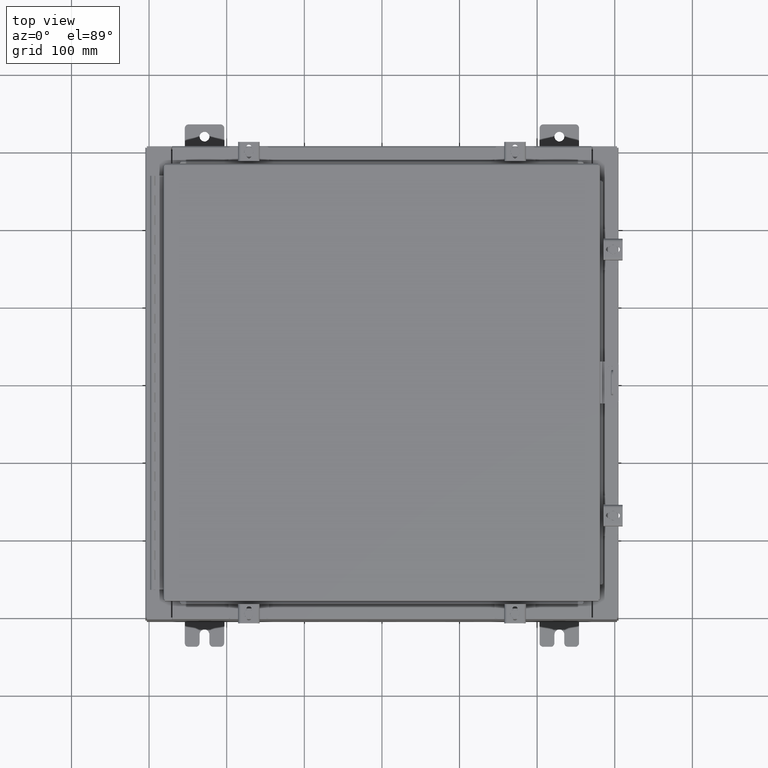
[diagram: clean part render]
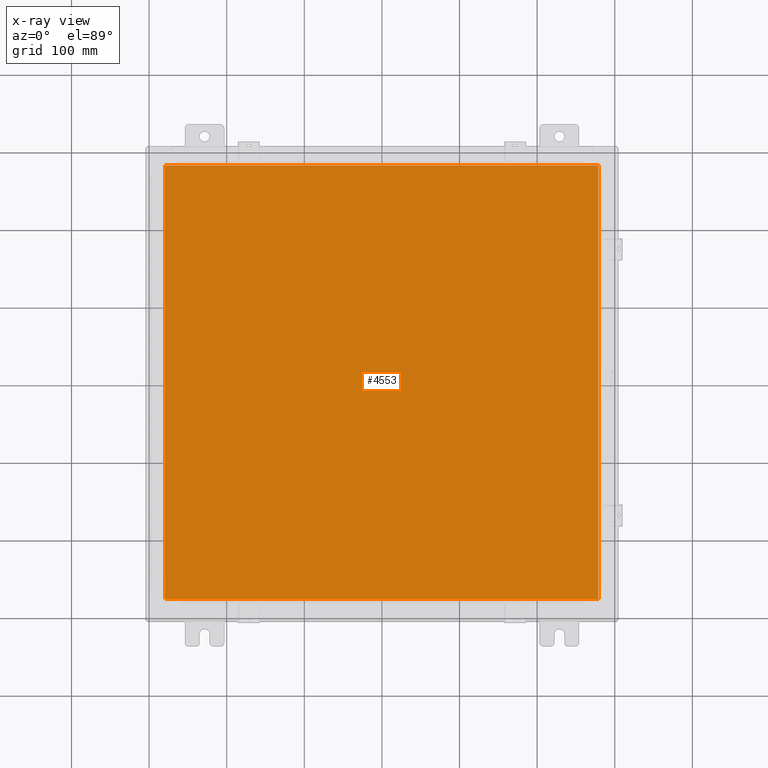
[diagram: x-ray — body ghosted, one internal face saturated and labeled with its STEP entity id]
A machine part, top view, then the same camera in x-ray: the body is ghosted and one INTERNAL B-rep face — a face not visible from any outside direction — is saturated and labeled: STEP entity #4553.
In plain terms, the highlighted planar face has unit normal (0, 0, -1).
Its self-contained STEP definition (entity closure, byte-faithful):
#355 = LINE ( 'NONE', #9846, #19582 ) ;
#2127 = EDGE_CURVE ( 'NONE', #5429, #5205, #18480, .T. ) ;
#3133 = CARTESIAN_POINT ( 'NONE',  ( 0.0000000000000000000, 0.0000000000000000000, -0.07470000000000015500 ) ) ;
#4385 = VECTOR ( 'NONE', #20074, 39.37007874015748100 ) ;
#4553 = ADVANCED_FACE ( 'NONE', ( #16742 ), #17475, .T. ) ;
#5205 = VERTEX_POINT ( 'NONE', #11306 ) ;
#5429 = VERTEX_POINT ( 'NONE', #12749 ) ;
#8432 = CARTESIAN_POINT ( 'NONE',  ( -10.99030000000000000, 11.00629999999999600, -0.07470000000000015500 ) ) ;
#9127 = EDGE_CURVE ( 'NONE', #18769, #22227, #355, .T. ) ;
#9163 = DIRECTION ( 'NONE',  ( 0.0000000000000000000, 1.000000000000000000, 0.0000000000000000000 ) ) ;
#9590 = VECTOR ( 'NONE', #28717, 39.37007874015748100 ) ;
#9846 = CARTESIAN_POINT ( 'NONE',  ( 10.99030000000000000, 11.00629999999999600, -0.07470000000000015500 ) ) ;
#10149 = CARTESIAN_POINT ( 'NONE',  ( -10.99030000000000000, -11.00630000000000100, -0.07469999999999907300 ) ) ;
#11234 = CARTESIAN_POINT ( 'NONE',  ( -10.99030000000000500, 11.00629999999999600, -0.07470000000000125200 ) ) ;
#11306 = CARTESIAN_POINT ( 'NONE',  ( 10.99029999999999600, -11.00630000000000100, -0.07470000000000015500 ) ) ;
#12749 = CARTESIAN_POINT ( 'NONE',  ( -10.99030000000000000, -11.00630000000000100, -0.07470000000000015500 ) ) ;
#13143 = CARTESIAN_POINT ( 'NONE',  ( 10.99029999999999600, 11.00629999999999600, -0.07470000000000015500 ) ) ;
#15222 = DIRECTION ( 'NONE',  ( -1.000000000000000000, -0.0000000000000000000, -0.0000000000000000000 ) ) ;
#15440 = LINE ( 'NONE', #11234, #9590 ) ;
#16035 = DIRECTION ( 'NONE',  ( -1.000000000000000000, 0.0000000000000000000, -0.0000000000000000000 ) ) ;
#16742 = FACE_OUTER_BOUND ( 'NONE', #21765, .T. ) ;
#17475 = PLANE ( 'NONE',  #24400 ) ;
#17783 = EDGE_CURVE ( 'NONE', #5205, #18769, #24898, .T. ) ;
#18204 = VECTOR ( 'NONE', #9163, 39.37007874015748100 ) ;
#18407 = DIRECTION ( 'NONE',  ( 0.0000000000000000000, 0.0000000000000000000, -1.000000000000000000 ) ) ;
#18480 = LINE ( 'NONE', #10149, #4385 ) ;
#18769 = VERTEX_POINT ( 'NONE', #13143 ) ;
#19582 = VECTOR ( 'NONE', #15222, 39.37007874015748100 ) ;
#20074 = DIRECTION ( 'NONE',  ( 1.000000000000000000, -0.0000000000000000000, -0.0000000000000000000 ) ) ;
#21765 = EDGE_LOOP ( 'NONE', ( #31590, #30915, #25674, #23043 ) ) ;
#22227 = VERTEX_POINT ( 'NONE', #8432 ) ;
#23043 = ORIENTED_EDGE ( 'NONE', *, *, #9127, .F. ) ;
#24400 = AXIS2_PLACEMENT_3D ( 'NONE', #3133, #18407, #16035 ) ;
#24898 = LINE ( 'NONE', #29156, #18204 ) ;
#25674 = ORIENTED_EDGE ( 'NONE', *, *, #30544, .F. ) ;
#28717 = DIRECTION ( 'NONE',  ( 0.0000000000000000000, -1.000000000000000000, 0.0000000000000000000 ) ) ;
#29156 = CARTESIAN_POINT ( 'NONE',  ( 10.99029999999999600, -11.00630000000000100, -0.07470000000000015500 ) ) ;
#30544 = EDGE_CURVE ( 'NONE', #22227, #5429, #15440, .T. ) ;
#30915 = ORIENTED_EDGE ( 'NONE', *, *, #2127, .F. ) ;
#31590 = ORIENTED_EDGE ( 'NONE', *, *, #17783, .F. ) ;